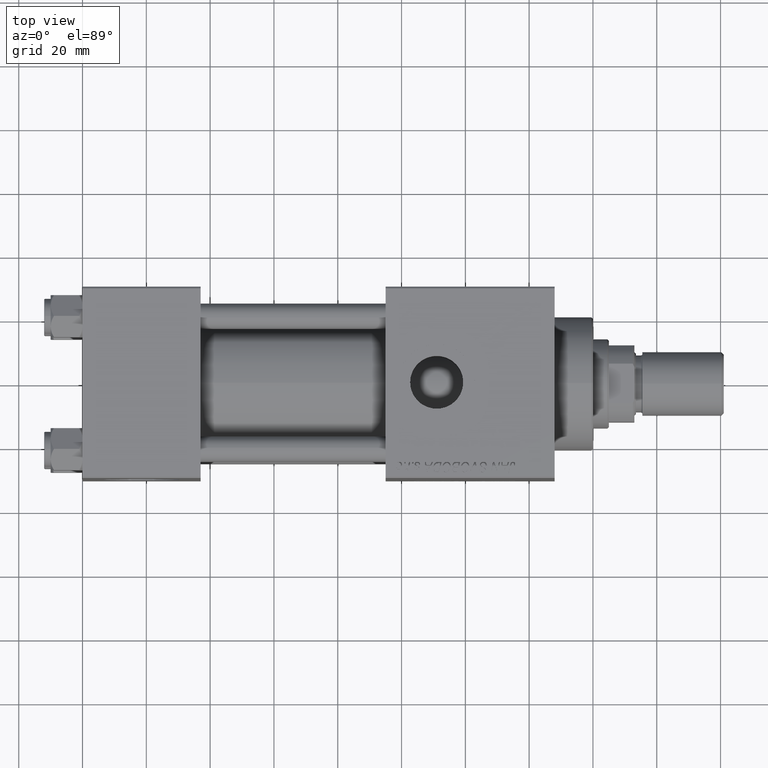
[diagram: clean part render]
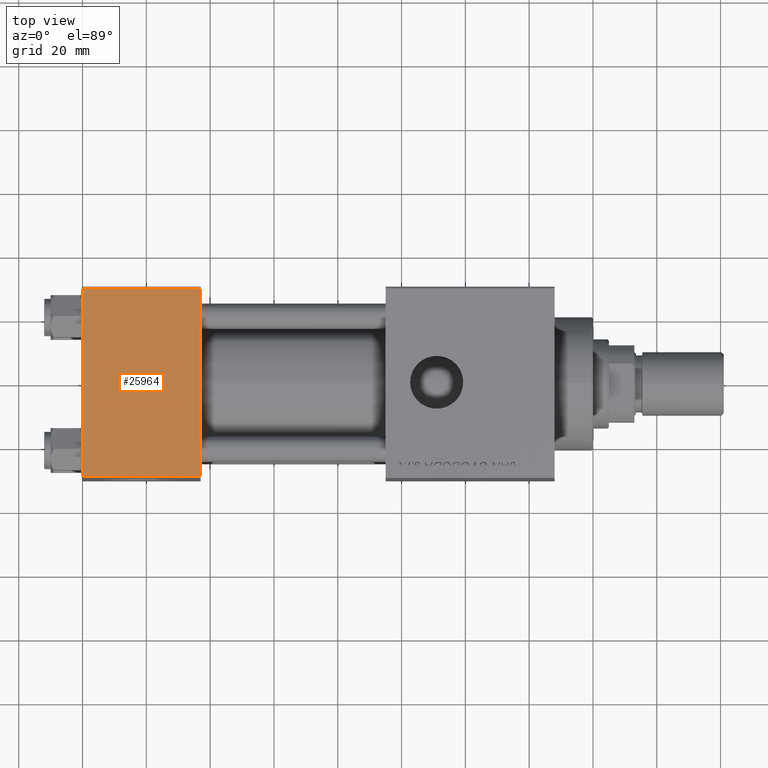
[diagram: same view with one face highlighted and labeled with its STEP entity id]
A machine part, top view. The second image highlights one B-rep face of the part: STEP entity #25964.
In plain terms, the highlighted planar face has unit normal (0, 0, -1).
Its self-contained STEP definition (entity closure, byte-faithful):
#1665 = FACE_OUTER_BOUND ( 'NONE', #48019, .T. ) ;
#6101 = ORIENTED_EDGE ( 'NONE', *, *, #10013, .F. ) ;
#6269 = LINE ( 'NONE', #10883, #15043 ) ;
#6464 = CARTESIAN_POINT ( 'NONE',  ( 0.000000000000000000, 29.49999999999999289, 30.00000000000000000 ) ) ;
#6717 = VECTOR ( 'NONE', #41779, 1000.000000000000000 ) ;
#7943 = CARTESIAN_POINT ( 'NONE',  ( 37.00000000000000000, 29.49999999999999289, 30.00000000000000000 ) ) ;
#9664 = ORIENTED_EDGE ( 'NONE', *, *, #31583, .T. ) ;
#10013 = EDGE_CURVE ( 'NONE', #10939, #23518, #6269, .T. ) ;
#10883 = CARTESIAN_POINT ( 'NONE',  ( 37.00000000000000000, 29.99999999999999289, 30.00000000000000000 ) ) ;
#10939 = VERTEX_POINT ( 'NONE', #7943 ) ;
#13317 = LINE ( 'NONE', #40981, #35411 ) ;
#14387 = LINE ( 'NONE', #26154, #6717 ) ;
#15043 = VECTOR ( 'NONE', #30608, 1000.000000000000000 ) ;
#18555 = CARTESIAN_POINT ( 'NONE',  ( 37.00000000000000000, -29.49999999999998579, 29.99999999999999289 ) ) ;
#21888 = CARTESIAN_POINT ( 'NONE',  ( 0.000000000000000000, 29.49999999999999289, 30.00000000000000000 ) ) ;
#22236 = ORIENTED_EDGE ( 'NONE', *, *, #30513, .T. ) ;
#22451 = EDGE_CURVE ( 'NONE', #10939, #45963, #40593, .T. ) ;
#23518 = VERTEX_POINT ( 'NONE', #18555 ) ;
#25964 = ADVANCED_FACE ( 'NONE', ( #1665 ), #29611, .F. ) ;
#26154 = CARTESIAN_POINT ( 'NONE',  ( 37.00000000000000000, -29.50000000000000000, 29.99999999999999289 ) ) ;
#27820 = AXIS2_PLACEMENT_3D ( 'NONE', #49327, #48561, #30115 ) ;
#29203 = DIRECTION ( 'NONE',  ( 0.000000000000000000, -1.000000000000000000, -1.156482317317871725E-16 ) ) ;
#29611 = PLANE ( 'NONE',  #27820 ) ;
#30115 = DIRECTION ( 'NONE',  ( 0.000000000000000000, 1.000000000000000000, 1.156482317317871725E-16 ) ) ;
#30513 = EDGE_CURVE ( 'NONE', #44975, #23518, #14387, .T. ) ;
#30608 = DIRECTION ( 'NONE',  ( 0.000000000000000000, -1.000000000000000000, -1.156482317317871725E-16 ) ) ;
#31583 = EDGE_CURVE ( 'NONE', #45963, #44975, #13317, .T. ) ;
#33594 = VECTOR ( 'NONE', #41595, 1000.000000000000000 ) ;
#35411 = VECTOR ( 'NONE', #29203, 1000.000000000000000 ) ;
#40593 = LINE ( 'NONE', #21888, #33594 ) ;
#40981 = CARTESIAN_POINT ( 'NONE',  ( 0.000000000000000000, 29.99999999999999289, 30.00000000000000000 ) ) ;
#41595 = DIRECTION ( 'NONE',  ( -1.000000000000000000, 0.000000000000000000, 0.000000000000000000 ) ) ;
#41779 = DIRECTION ( 'NONE',  ( 1.000000000000000000, 0.000000000000000000, 0.000000000000000000 ) ) ;
#44975 = VERTEX_POINT ( 'NONE', #49510 ) ;
#45963 = VERTEX_POINT ( 'NONE', #6464 ) ;
#47574 = ORIENTED_EDGE ( 'NONE', *, *, #22451, .T. ) ;
#48019 = EDGE_LOOP ( 'NONE', ( #9664, #22236, #6101, #47574 ) ) ;
#48561 = DIRECTION ( 'NONE',  ( 0.000000000000000000, 1.156482317317871725E-16, -1.000000000000000000 ) ) ;
#49327 = CARTESIAN_POINT ( 'NONE',  ( 37.00000000000000000, 29.99999999999999289, 30.00000000000000000 ) ) ;
#49510 = CARTESIAN_POINT ( 'NONE',  ( 0.000000000000000000, -29.49999999999998579, 29.99999999999999289 ) ) ;